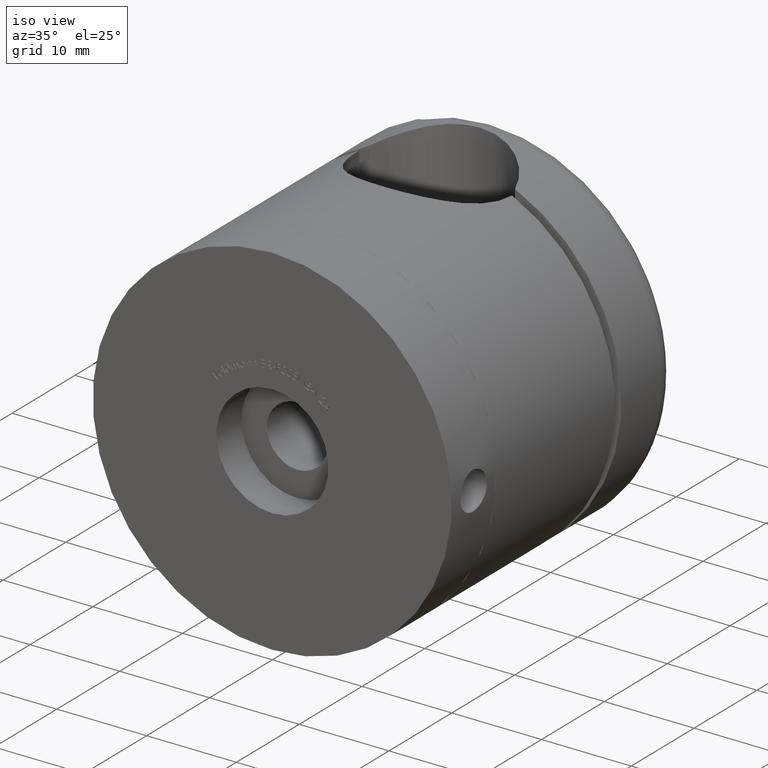
[diagram: clean part render]
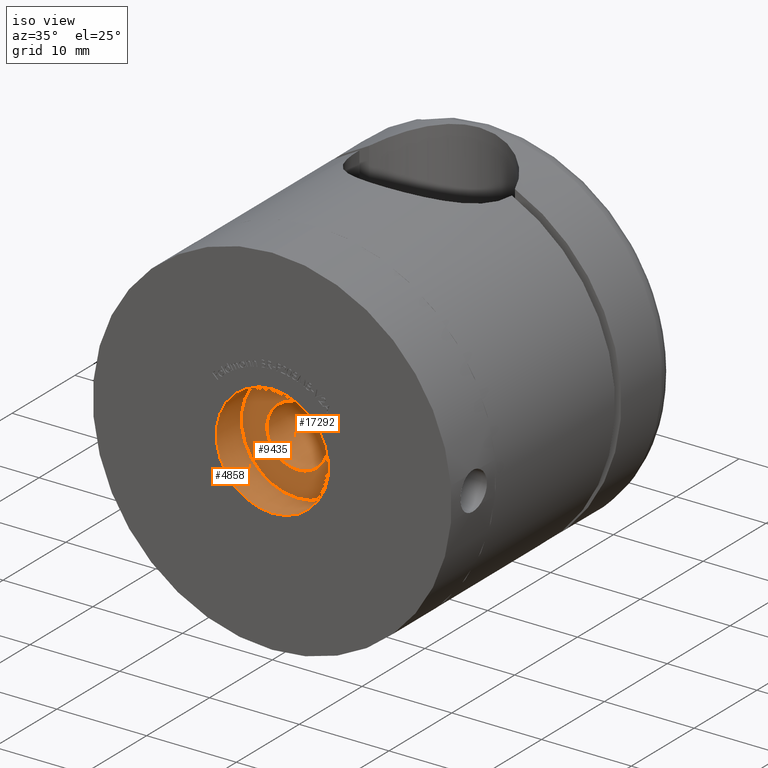
[diagram: same view with one multi-face feature highlighted, each face labeled with its STEP entity id]
A machine part, iso view. The highlighted faces form ONE feature: a stepped (counterbored) hole: 2 coaxial cylindrical walls of radii 3.4 -> 6.25 mm joined by 1 annular planar shoulder face(s). The faces share edges in the B-rep.
Their STEP definitions:
[1] entity #4858 (Cylinder):
#707 = DIRECTION ( 'NONE',  ( 0.0000000000000000000, -1.000000000000000000, 0.0000000000000000000 ) ) ;
#1816 = AXIS2_PLACEMENT_3D ( 'NONE', #10134, #707, #16934 ) ;
#2249 = VERTEX_POINT ( 'NONE', #15769 ) ;
#4500 = EDGE_LOOP ( 'NONE', ( #11174 ) ) ;
#4858 = ADVANCED_FACE ( 'NONE', ( #8342, #13796 ), #16959, .F. ) ;
#4911 = CARTESIAN_POINT ( 'NONE',  ( 0.0000000000000000000, 4.000000000000000000, -6.250000000000000000 ) ) ;
#5005 = DIRECTION ( 'NONE',  ( 0.0000000000000000000, 0.0000000000000000000, -1.000000000000000000 ) ) ;
#5230 = CARTESIAN_POINT ( 'NONE',  ( 0.0000000000000000000, 0.0000000000000000000, 0.0000000000000000000 ) ) ;
#5951 = EDGE_LOOP ( 'NONE', ( #10381 ) ) ;
#6687 = EDGE_CURVE ( 'NONE', #14861, #14861, #16924, .T. ) ;
#8342 = FACE_OUTER_BOUND ( 'NONE', #5951, .T. ) ;
#9604 = AXIS2_PLACEMENT_3D ( 'NONE', #11656, #13043, #5005 ) ;
#10134 = CARTESIAN_POINT ( 'NONE',  ( 0.0000000000000000000, 4.000000000000000000, 0.0000000000000000000 ) ) ;
#10381 = ORIENTED_EDGE ( 'NONE', *, *, #6687, .F. ) ;
#10701 = DIRECTION ( 'NONE',  ( 0.0000000000000000000, -1.000000000000000000, 0.0000000000000000000 ) ) ;
#11174 = ORIENTED_EDGE ( 'NONE', *, *, #13018, .T. ) ;
#11656 = CARTESIAN_POINT ( 'NONE',  ( 0.0000000000000000000, 4.000000000000000000, 0.0000000000000000000 ) ) ;
#13018 = EDGE_CURVE ( 'NONE', #2249, #2249, #14190, .T. ) ;
#13043 = DIRECTION ( 'NONE',  ( -0.0000000000000000000, -1.000000000000000000, -0.0000000000000000000 ) ) ;
#13215 = DIRECTION ( 'NONE',  ( 0.0000000000000000000, 0.0000000000000000000, -1.000000000000000000 ) ) ;
#13796 = FACE_OUTER_BOUND ( 'NONE', #4500, .T. ) ;
#14190 = CIRCLE ( 'NONE', #15596, 6.250000000000000000 ) ;
#14861 = VERTEX_POINT ( 'NONE', #4911 ) ;
#15596 = AXIS2_PLACEMENT_3D ( 'NONE', #5230, #10701, #13215 ) ;
#15769 = CARTESIAN_POINT ( 'NONE',  ( 0.0000000000000000000, 0.0000000000000000000, -6.250000000000000000 ) ) ;
#16924 = CIRCLE ( 'NONE', #1816, 6.250000000000000000 ) ;
#16934 = DIRECTION ( 'NONE',  ( 0.0000000000000000000, 0.0000000000000000000, -1.000000000000000000 ) ) ;
#16959 = CYLINDRICAL_SURFACE ( 'NONE', #9604, 6.250000000000000000 ) ;
[2] entity #17292 (Cylinder):
#553 = VERTEX_POINT ( 'NONE', #2250 ) ;
#1175 = EDGE_LOOP ( 'NONE', ( #9071 ) ) ;
#1405 = CARTESIAN_POINT ( 'NONE',  ( 0.0000000000000000000, 4.000000000000000000, 0.0000000000000000000 ) ) ;
#2137 = DIRECTION ( 'NONE',  ( 0.0000000000000000000, 0.0000000000000000000, 1.000000000000000000 ) ) ;
#2250 = CARTESIAN_POINT ( 'NONE',  ( 0.0000000000000000000, 13.15000000000000000, 3.399999999999997700 ) ) ;
#3564 = DIRECTION ( 'NONE',  ( 0.0000000000000000000, -1.000000000000000000, 0.0000000000000000000 ) ) ;
#3697 = CIRCLE ( 'NONE', #6311, 3.399999999999998600 ) ;
#5911 = EDGE_CURVE ( 'NONE', #10260, #10260, #3697, .T. ) ;
#6179 = CARTESIAN_POINT ( 'NONE',  ( 0.0000000000000000000, 4.000000000000000000, -3.399999999999998600 ) ) ;
#6311 = AXIS2_PLACEMENT_3D ( 'NONE', #1405, #16212, #15102 ) ;
#7074 = CYLINDRICAL_SURFACE ( 'NONE', #14728, 3.399999999999997700 ) ;
#9071 = ORIENTED_EDGE ( 'NONE', *, *, #11955, .F. ) ;
#9579 = CIRCLE ( 'NONE', #13244, 3.399999999999997700 ) ;
#9916 = DIRECTION ( 'NONE',  ( -0.0000000000000000000, -1.000000000000000000, -0.0000000000000000000 ) ) ;
#10029 = EDGE_LOOP ( 'NONE', ( #14180 ) ) ;
#10260 = VERTEX_POINT ( 'NONE', #6179 ) ;
#11748 = FACE_OUTER_BOUND ( 'NONE', #10029, .T. ) ;
#11955 = EDGE_CURVE ( 'NONE', #553, #553, #9579, .T. ) ;
#12400 = DIRECTION ( 'NONE',  ( 0.0000000000000000000, 0.0000000000000000000, -1.000000000000000000 ) ) ;
#13244 = AXIS2_PLACEMENT_3D ( 'NONE', #15650, #3564, #2137 ) ;
#13607 = FACE_OUTER_BOUND ( 'NONE', #1175, .T. ) ;
#13790 = CARTESIAN_POINT ( 'NONE',  ( 0.0000000000000000000, 4.000000000000000000, -0.0000000000000000000 ) ) ;
#14180 = ORIENTED_EDGE ( 'NONE', *, *, #5911, .T. ) ;
#14728 = AXIS2_PLACEMENT_3D ( 'NONE', #13790, #9916, #12400 ) ;
#15102 = DIRECTION ( 'NONE',  ( 0.0000000000000000000, 0.0000000000000000000, -1.000000000000000000 ) ) ;
#15650 = CARTESIAN_POINT ( 'NONE',  ( 0.0000000000000000000, 13.15000000000000000, 0.0000000000000000000 ) ) ;
#16212 = DIRECTION ( 'NONE',  ( -0.0000000000000000000, -1.000000000000000000, -0.0000000000000000000 ) ) ;
#17292 = ADVANCED_FACE ( 'NONE', ( #11748, #13607 ), #7074, .F. ) ;
[3] entity #9435 (Plane):
#390 = ORIENTED_EDGE ( 'NONE', *, *, #6687, .T. ) ;
#707 = DIRECTION ( 'NONE',  ( 0.0000000000000000000, -1.000000000000000000, 0.0000000000000000000 ) ) ;
#1405 = CARTESIAN_POINT ( 'NONE',  ( 0.0000000000000000000, 4.000000000000000000, 0.0000000000000000000 ) ) ;
#1663 = DIRECTION ( 'NONE',  ( 0.0000000000000000000, -1.000000000000000000, 0.0000000000000000000 ) ) ;
#1679 = FACE_OUTER_BOUND ( 'NONE', #17310, .T. ) ;
#1816 = AXIS2_PLACEMENT_3D ( 'NONE', #10134, #707, #16934 ) ;
#2530 = EDGE_LOOP ( 'NONE', ( #7661 ) ) ;
#3697 = CIRCLE ( 'NONE', #6311, 3.399999999999998600 ) ;
#4564 = AXIS2_PLACEMENT_3D ( 'NONE', #9675, #1663, #6954 ) ;
#4911 = CARTESIAN_POINT ( 'NONE',  ( 0.0000000000000000000, 4.000000000000000000, -6.250000000000000000 ) ) ;
#5911 = EDGE_CURVE ( 'NONE', #10260, #10260, #3697, .T. ) ;
#6179 = CARTESIAN_POINT ( 'NONE',  ( 0.0000000000000000000, 4.000000000000000000, -3.399999999999998600 ) ) ;
#6311 = AXIS2_PLACEMENT_3D ( 'NONE', #1405, #16212, #15102 ) ;
#6687 = EDGE_CURVE ( 'NONE', #14861, #14861, #16924, .T. ) ;
#6954 = DIRECTION ( 'NONE',  ( 0.0000000000000000000, -0.0000000000000000000, -1.000000000000000000 ) ) ;
#7075 = PLANE ( 'NONE',  #4564 ) ;
#7661 = ORIENTED_EDGE ( 'NONE', *, *, #5911, .F. ) ;
#9435 = ADVANCED_FACE ( 'NONE', ( #10971, #1679 ), #7075, .T. ) ;
#9675 = CARTESIAN_POINT ( 'NONE',  ( 0.0000000000000000000, 4.000000000000000000, 0.0000000000000000000 ) ) ;
#10134 = CARTESIAN_POINT ( 'NONE',  ( 0.0000000000000000000, 4.000000000000000000, 0.0000000000000000000 ) ) ;
#10260 = VERTEX_POINT ( 'NONE', #6179 ) ;
#10971 = FACE_BOUND ( 'NONE', #2530, .T. ) ;
#14861 = VERTEX_POINT ( 'NONE', #4911 ) ;
#15102 = DIRECTION ( 'NONE',  ( 0.0000000000000000000, 0.0000000000000000000, -1.000000000000000000 ) ) ;
#16212 = DIRECTION ( 'NONE',  ( -0.0000000000000000000, -1.000000000000000000, -0.0000000000000000000 ) ) ;
#16924 = CIRCLE ( 'NONE', #1816, 6.250000000000000000 ) ;
#16934 = DIRECTION ( 'NONE',  ( 0.0000000000000000000, 0.0000000000000000000, -1.000000000000000000 ) ) ;
#17310 = EDGE_LOOP ( 'NONE', ( #390 ) ) ;